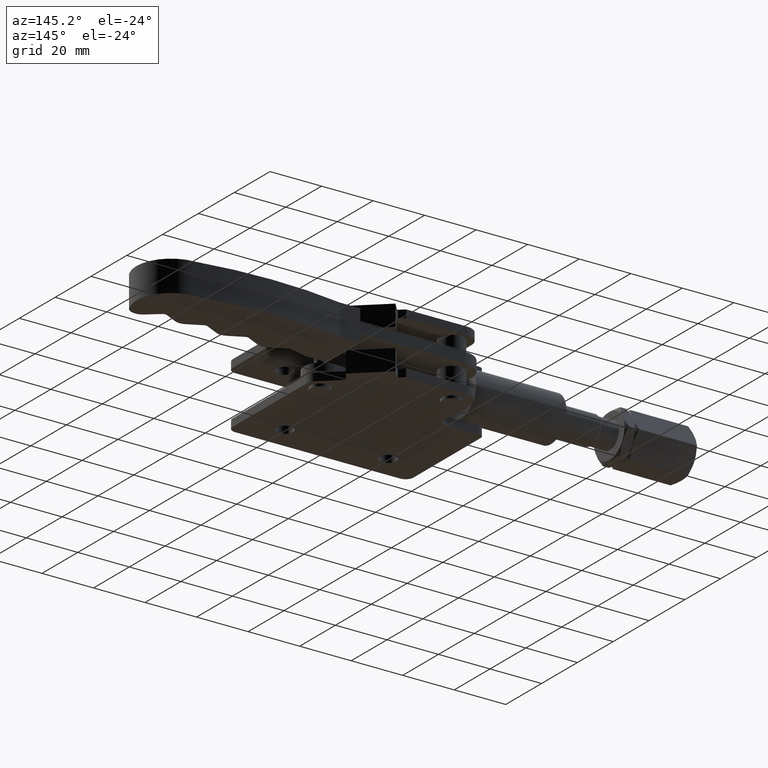
[diagram: clean part render]
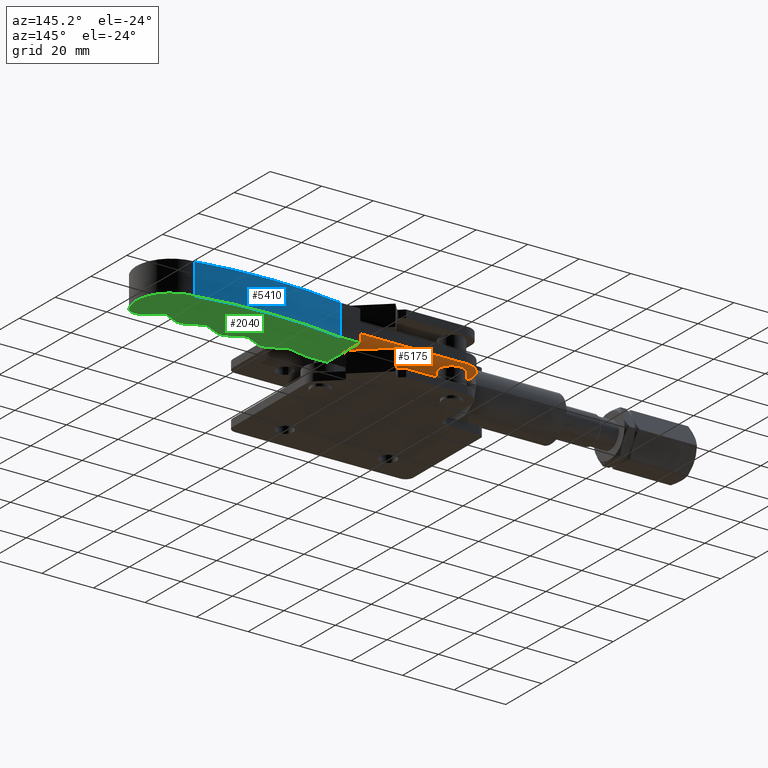
[diagram: same view with three faces highlighted in distinct colors, each labeled with its STEP entity id]
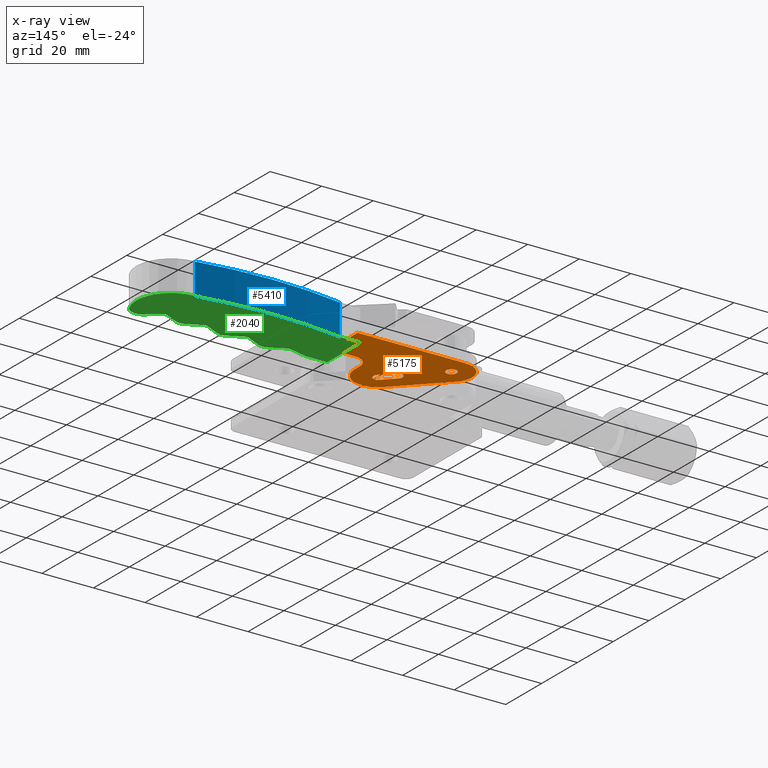
[diagram: x-ray of the same camera — body ghosted, the three highlighted faces saturated]
A machine part, auxiliary view with three faces highlighted in distinct colors.
The next image is the same camera in x-ray (body ghosted, the three faces saturated) — at least one of them is partly hidden behind the body in this view.
Their STEP definitions:

[orange] entity #5175 — the highlighted planar face has unit normal (0, 0, 1).
#105 = FACE_OUTER_BOUND ( 'NONE', #6882, .T. ) ;
#120 = DIRECTION ( 'NONE',  ( 0.0000000000000000000, 0.0000000000000000000, 1.000000000000000000 ) ) ;
#128 = ORIENTED_EDGE ( 'NONE', *, *, #5411, .F. ) ;
#252 = VERTEX_POINT ( 'NONE', #3596 ) ;
#255 = CARTESIAN_POINT ( 'NONE',  ( 16.63999999999999700, 37.80000000000000400, -13.77000000000000500 ) ) ;
#260 = CIRCLE ( 'NONE', #5639, 5.499999999999019500 ) ;
#271 = DIRECTION ( 'NONE',  ( 0.0000000000000000000, 0.0000000000000000000, 1.000000000000000000 ) ) ;
#275 = LINE ( 'NONE', #4482, #3227 ) ;
#327 = LINE ( 'NONE', #2706, #1742 ) ;
#346 = AXIS2_PLACEMENT_3D ( 'NONE', #3996, #120, #2232 ) ;
#491 = ORIENTED_EDGE ( 'NONE', *, *, #5533, .F. ) ;
#628 = VERTEX_POINT ( 'NONE', #735 ) ;
#735 = CARTESIAN_POINT ( 'NONE',  ( 35.49708473947954700, 23.89462406883339800, -13.77000000000000500 ) ) ;
#736 = CARTESIAN_POINT ( 'NONE',  ( 66.63999999999997200, 30.13999999999999000, -13.77000000000000500 ) ) ;
#768 = VECTOR ( 'NONE', #6099, 999.9999999999998900 ) ;
#782 = AXIS2_PLACEMENT_3D ( 'NONE', #1001, #5274, #6490 ) ;
#916 = EDGE_CURVE ( 'NONE', #3163, #4351, #327, .T. ) ;
#1001 = CARTESIAN_POINT ( 'NONE',  ( 42.06757448628071900, 21.80705538169615900, -13.77000000000000500 ) ) ;
#1109 = VECTOR ( 'NONE', #5834, 1000.000000000000000 ) ;
#1158 = CIRCLE ( 'NONE', #782, 9.000000000000257600 ) ;
#1171 = DIRECTION ( 'NONE',  ( 1.000000000000000000, 0.0000000000000000000, 0.0000000000000000000 ) ) ;
#1309 = DIRECTION ( 'NONE',  ( 0.0000000000000000000, 0.0000000000000000000, 1.000000000000000000 ) ) ;
#1326 = ORIENTED_EDGE ( 'NONE', *, *, #6777, .T. ) ;
#1459 = EDGE_CURVE ( 'NONE', #2642, #4711, #2416, .T. ) ;
#1492 = FACE_BOUND ( 'NONE', #6601, .T. ) ;
#1710 = CARTESIAN_POINT ( 'NONE',  ( 35.70361345560031900, 15.44309435101834700, -13.77000000000000500 ) ) ;
#1742 = VECTOR ( 'NONE', #5697, 1000.000000000000100 ) ;
#1764 = CIRCLE ( 'NONE', #2292, 1.999999999999994900 ) ;
#1785 = EDGE_CURVE ( 'NONE', #628, #252, #4349, .T. ) ;
#1796 = CARTESIAN_POINT ( 'NONE',  ( 24.63999999999481700, 45.79999999999999000, -13.77000000000000500 ) ) ;
#1806 = DIRECTION ( 'NONE',  ( 0.7001403784983845100, -0.7140052173451808500, 0.0000000000000000000 ) ) ;
#1867 = CARTESIAN_POINT ( 'NONE',  ( 24.63999999999998300, 37.80000000000000400, -13.77000000000000500 ) ) ;
#1879 = CARTESIAN_POINT ( 'NONE',  ( 19.33304178759185300, 31.81366601902687600, -13.77000000000000500 ) ) ;
#1938 = AXIS2_PLACEMENT_3D ( 'NONE', #4382, #6692, #2212 ) ;
#2085 = VERTEX_POINT ( 'NONE', #5777 ) ;
#2115 = ORIENTED_EDGE ( 'NONE', *, *, #4619, .T. ) ;
#2120 = EDGE_CURVE ( 'NONE', #7814, #2587, #1158, .T. ) ;
#2212 = DIRECTION ( 'NONE',  ( 1.000000000000000000, 0.0000000000000000000, 0.0000000000000000000 ) ) ;
#2232 = DIRECTION ( 'NONE',  ( 1.000000000000000000, 0.0000000000000000000, 0.0000000000000000000 ) ) ;
#2263 = CIRCLE ( 'NONE', #4455, 1.999999999999994900 ) ;
#2292 = AXIS2_PLACEMENT_3D ( 'NONE', #3544, #271, #5903 ) ;
#2347 = DIRECTION ( 'NONE',  ( 1.000000000000000000, 9.577049455932481800E-017, -0.0000000000000000000 ) ) ;
#2355 = VERTEX_POINT ( 'NONE', #255 ) ;
#2416 = CIRCLE ( 'NONE', #346, 2.000000000000001800 ) ;
#2435 = DIRECTION ( 'NONE',  ( 0.0000000000000000000, 0.0000000000000000000, 1.000000000000000000 ) ) ;
#2453 = CARTESIAN_POINT ( 'NONE',  ( 51.06168597189167700, 24.64942046338285300, -13.77000000000000500 ) ) ;
#2461 = CARTESIAN_POINT ( 'NONE',  ( 24.63999999999481700, 45.79999999999999000, -13.77000000000000500 ) ) ;
#2491 = VERTEX_POINT ( 'NONE', #5902 ) ;
#2586 = VERTEX_POINT ( 'NONE', #736 ) ;
#2587 = VERTEX_POINT ( 'NONE', #4617 ) ;
#2605 = VERTEX_POINT ( 'NONE', #4953 ) ;
#2631 = DIRECTION ( 'NONE',  ( -0.002071690857297302800, 0.9999978540461933500, -0.0000000000000000000 ) ) ;
#2642 = VERTEX_POINT ( 'NONE', #3200 ) ;
#2696 = CARTESIAN_POINT ( 'NONE',  ( 42.63796472527037200, 22.32547365267441800, -13.77000000000000500 ) ) ;
#2706 = CARTESIAN_POINT ( 'NONE',  ( 48.30628017460944800, 16.54490888498228400, -13.77000000000000500 ) ) ;
#2846 = EDGE_CURVE ( 'NONE', #4711, #2642, #6194, .T. ) ;
#2887 = ORIENTED_EDGE ( 'NONE', *, *, #1459, .T. ) ;
#2963 = CARTESIAN_POINT ( 'NONE',  ( 41.20995429058001500, 20.92519289567766100, -13.77000000000000500 ) ) ;
#3027 = LINE ( 'NONE', #3054, #1109 ) ;
#3054 = CARTESIAN_POINT ( 'NONE',  ( 66.63999999999997200, 24.64000000000688600, -13.77000000000000500 ) ) ;
#3073 = CARTESIAN_POINT ( 'NONE',  ( 43.20995429058001500, 20.92519289567766100, -13.77000000000000500 ) ) ;
#3133 = EDGE_CURVE ( 'NONE', #4362, #2355, #4919, .T. ) ;
#3163 = VERTEX_POINT ( 'NONE', #2696 ) ;
#3200 = CARTESIAN_POINT ( 'NONE',  ( 26.63999999999998300, 37.80000000000000400, -13.77000000000000500 ) ) ;
#3227 = VECTOR ( 'NONE', #2347, 1000.000000000000000 ) ;
#3228 = CIRCLE ( 'NONE', #1938, 7.999999999999979600 ) ;
#3537 = LINE ( 'NONE', #1879, #768 ) ;
#3544 = CARTESIAN_POINT ( 'NONE',  ( 41.20995429058001500, 20.92519289567766100, -13.77000000000000500 ) ) ;
#3596 = CARTESIAN_POINT ( 'NONE',  ( 39.78194385588965800, 19.52491213868089300, -13.77000000000000500 ) ) ;
#3629 = ORIENTED_EDGE ( 'NONE', *, *, #7435, .F. ) ;
#3686 = EDGE_CURVE ( 'NONE', #2586, #2085, #3027, .T. ) ;
#3790 = DIRECTION ( 'NONE',  ( -1.000000000000000000, -0.0000000000000000000, -0.0000000000000000000 ) ) ;
#3883 = DIRECTION ( 'NONE',  ( 0.0000000000000000000, 0.0000000000000000000, 1.000000000000000000 ) ) ;
#3996 = CARTESIAN_POINT ( 'NONE',  ( 24.63999999999998300, 37.80000000000000400, -13.77000000000000500 ) ) ;
#4017 = VECTOR ( 'NONE', #2631, 1000.000000000000000 ) ;
#4043 = VECTOR ( 'NONE', #3790, 1000.000000000000000 ) ;
#4225 = VECTOR ( 'NONE', #1806, 1000.000000000000100 ) ;
#4230 = ORIENTED_EDGE ( 'NONE', *, *, #6634, .T. ) ;
#4349 = LINE ( 'NONE', #6594, #4225 ) ;
#4351 = VERTEX_POINT ( 'NONE', #5416 ) ;
#4362 = VERTEX_POINT ( 'NONE', #2461 ) ;
#4374 = CARTESIAN_POINT ( 'NONE',  ( 51.06168597189167700, 24.64942046338285300, -13.77000000000000500 ) ) ;
#4382 = CARTESIAN_POINT ( 'NONE',  ( 24.63999999999998300, 37.80000000000000400, -13.77000000000000500 ) ) ;
#4455 = AXIS2_PLACEMENT_3D ( 'NONE', #7656, #1309, #1171 ) ;
#4482 = CARTESIAN_POINT ( 'NONE',  ( 74.67502540862861300, 30.13999999999999000, -13.77000000000000500 ) ) ;
#4523 = ORIENTED_EDGE ( 'NONE', *, *, #4691, .F. ) ;
#4617 = CARTESIAN_POINT ( 'NONE',  ( 51.06757448628098900, 21.80705538169442200, -13.77000000000000500 ) ) ;
#4619 = EDGE_CURVE ( 'NONE', #6875, #3163, #4898, .T. ) ;
#4626 = DIRECTION ( 'NONE',  ( 0.0000000000000000000, 0.0000000000000000000, 1.000000000000000000 ) ) ;
#4691 = EDGE_CURVE ( 'NONE', #2587, #4837, #6028, .T. ) ;
#4711 = VERTEX_POINT ( 'NONE', #7704 ) ;
#4733 = ORIENTED_EDGE ( 'NONE', *, *, #1785, .T. ) ;
#4744 = AXIS2_PLACEMENT_3D ( 'NONE', #5635, #2435, #7849 ) ;
#4754 = DIRECTION ( 'NONE',  ( 1.000000000000000000, 0.0000000000000000000, 0.0000000000000000000 ) ) ;
#4826 = ORIENTED_EDGE ( 'NONE', *, *, #2120, .F. ) ;
#4837 = VERTEX_POINT ( 'NONE', #4374 ) ;
#4898 = CIRCLE ( 'NONE', #7235, 1.999999999999994900 ) ;
#4919 = CIRCLE ( 'NONE', #6386, 7.999999999999979600 ) ;
#4953 = CARTESIAN_POINT ( 'NONE',  ( 19.33304178759185300, 31.81366601902687600, -13.77000000000000500 ) ) ;
#5175 = ADVANCED_FACE ( 'NONE', ( #6191, #1492, #105 ), #7450, .F. ) ;
#5240 = EDGE_CURVE ( 'NONE', #2605, #7814, #3537, .T. ) ;
#5266 = ORIENTED_EDGE ( 'NONE', *, *, #5240, .F. ) ;
#5274 = DIRECTION ( 'NONE',  ( 0.0000000000000000000, 0.0000000000000000000, 1.000000000000000000 ) ) ;
#5296 = DIRECTION ( 'NONE',  ( 0.0000000000000000000, 0.0000000000000000000, 1.000000000000000000 ) ) ;
#5411 = EDGE_CURVE ( 'NONE', #2491, #2586, #275, .T. ) ;
#5416 = CARTESIAN_POINT ( 'NONE',  ( 38.35310560886026800, 26.69518558282693700, -13.77000000000000500 ) ) ;
#5533 = EDGE_CURVE ( 'NONE', #4837, #2491, #260, .T. ) ;
#5635 = CARTESIAN_POINT ( 'NONE',  ( 56.56167790414566800, 24.64000000000688600, -13.77000000000000500 ) ) ;
#5639 = AXIS2_PLACEMENT_3D ( 'NONE', #5674, #6016, #7811 ) ;
#5674 = CARTESIAN_POINT ( 'NONE',  ( 56.56167790414566800, 24.64000000000688600, -13.77000000000000500 ) ) ;
#5697 = DIRECTION ( 'NONE',  ( -0.7001403784983836200, 0.7140052173451816300, 0.0000000000000000000 ) ) ;
#5777 = CARTESIAN_POINT ( 'NONE',  ( 66.63999999999997200, 45.79999999999999000, -13.77000000000000500 ) ) ;
#5789 = DIRECTION ( 'NONE',  ( 1.000000000000000000, 0.0000000000000000000, 0.0000000000000000000 ) ) ;
#5834 = DIRECTION ( 'NONE',  ( -0.0000000000000000000, 1.000000000000000000, 0.0000000000000000000 ) ) ;
#5902 = CARTESIAN_POINT ( 'NONE',  ( 56.56168597189596900, 30.13999999999998600, -13.77000000000000500 ) ) ;
#5903 = DIRECTION ( 'NONE',  ( 1.000000000000000000, 0.0000000000000000000, 0.0000000000000000000 ) ) ;
#6016 = DIRECTION ( 'NONE',  ( -0.0000000000000000000, -0.0000000000000000000, -1.000000000000000000 ) ) ;
#6028 = LINE ( 'NONE', #2453, #4017 ) ;
#6099 = DIRECTION ( 'NONE',  ( 0.7071067811865464600, -0.7071067811865486800, 0.0000000000000000000 ) ) ;
#6191 = FACE_BOUND ( 'NONE', #7273, .T. ) ;
#6194 = CIRCLE ( 'NONE', #6949, 2.000000000000001800 ) ;
#6344 = DIRECTION ( 'NONE',  ( 1.000000000000000000, 0.0000000000000000000, 0.0000000000000000000 ) ) ;
#6386 = AXIS2_PLACEMENT_3D ( 'NONE', #7318, #5296, #4754 ) ;
#6413 = ORIENTED_EDGE ( 'NONE', *, *, #916, .T. ) ;
#6490 = DIRECTION ( 'NONE',  ( 1.000000000000000000, 0.0000000000000000000, 0.0000000000000000000 ) ) ;
#6593 = ORIENTED_EDGE ( 'NONE', *, *, #3133, .F. ) ;
#6594 = CARTESIAN_POINT ( 'NONE',  ( 45.45025930522874800, 13.74434737098875200, -13.77000000000000500 ) ) ;
#6601 = EDGE_LOOP ( 'NONE', ( #7196, #2887 ) ) ;
#6634 = EDGE_CURVE ( 'NONE', #252, #6875, #1764, .T. ) ;
#6692 = DIRECTION ( 'NONE',  ( 0.0000000000000000000, 0.0000000000000000000, 1.000000000000000000 ) ) ;
#6722 = ORIENTED_EDGE ( 'NONE', *, *, #3686, .F. ) ;
#6777 = EDGE_CURVE ( 'NONE', #4351, #628, #2263, .T. ) ;
#6875 = VERTEX_POINT ( 'NONE', #3073 ) ;
#6882 = EDGE_LOOP ( 'NONE', ( #6722, #128, #491, #4523, #4826, #5266, #7836, #6593, #3629 ) ) ;
#6949 = AXIS2_PLACEMENT_3D ( 'NONE', #1867, #3883, #6344 ) ;
#7196 = ORIENTED_EDGE ( 'NONE', *, *, #2846, .T. ) ;
#7235 = AXIS2_PLACEMENT_3D ( 'NONE', #2963, #4626, #5789 ) ;
#7273 = EDGE_LOOP ( 'NONE', ( #4733, #4230, #2115, #6413, #1326 ) ) ;
#7282 = LINE ( 'NONE', #1796, #4043 ) ;
#7318 = CARTESIAN_POINT ( 'NONE',  ( 24.63999999999998300, 37.80000000000000400, -13.77000000000000500 ) ) ;
#7435 = EDGE_CURVE ( 'NONE', #2085, #4362, #7282, .T. ) ;
#7450 = PLANE ( 'NONE',  #4744 ) ;
#7545 = EDGE_CURVE ( 'NONE', #2355, #2605, #3228, .T. ) ;
#7656 = CARTESIAN_POINT ( 'NONE',  ( 36.92509517416990400, 25.29490482583016900, -13.77000000000000500 ) ) ;
#7704 = CARTESIAN_POINT ( 'NONE',  ( 22.63999999999997900, 37.80000000000000400, -13.77000000000000500 ) ) ;
#7811 = DIRECTION ( 'NONE',  ( 1.000000000000000000, 0.0000000000000000000, 0.0000000000000000000 ) ) ;
#7814 = VERTEX_POINT ( 'NONE', #1710 ) ;
#7836 = ORIENTED_EDGE ( 'NONE', *, *, #7545, .F. ) ;
#7849 = DIRECTION ( 'NONE',  ( 1.000000000000000000, 0.0000000000000000000, -0.0000000000000000000 ) ) ;

[blue] entity #5410 — the highlighted cylindrical surface (partial cylindrical patch) has radius 161.5 mm, axis along (-0, -0, -1).
#82 = VECTOR ( 'NONE', #980, 1000.000000000000000 ) ;
#551 = DIRECTION ( 'NONE',  ( 1.000000000000000000, 0.0000000000000000000, 0.0000000000000000000 ) ) ;
#635 = CARTESIAN_POINT ( 'NONE',  ( 130.8058311041600900, 47.29931510057464500, -17.77000000000000300 ) ) ;
#980 = DIRECTION ( 'NONE',  ( -0.0000000000000000000, -0.0000000000000000000, -1.000000000000000000 ) ) ;
#1095 = LINE ( 'NONE', #3642, #3161 ) ;
#1585 = AXIS2_PLACEMENT_3D ( 'NONE', #3805, #6986, #551 ) ;
#1618 = CARTESIAN_POINT ( 'NONE',  ( 130.8058311041600900, 47.29931510057464500, -5.770000000000004000 ) ) ;
#1793 = EDGE_CURVE ( 'NONE', #3017, #3004, #6496, .T. ) ;
#2457 = DIRECTION ( 'NONE',  ( -1.000000000000000000, 0.0000000000000000000, 0.0000000000000000000 ) ) ;
#2497 = ORIENTED_EDGE ( 'NONE', *, *, #1793, .T. ) ;
#2695 = EDGE_CURVE ( 'NONE', #3400, #3017, #1095, .T. ) ;
#2761 = ORIENTED_EDGE ( 'NONE', *, *, #3774, .F. ) ;
#3004 = VERTEX_POINT ( 'NONE', #5115 ) ;
#3017 = VERTEX_POINT ( 'NONE', #635 ) ;
#3028 = DIRECTION ( 'NONE',  ( 0.0000000000000000000, 0.0000000000000000000, 1.000000000000000000 ) ) ;
#3161 = VECTOR ( 'NONE', #4014, 1000.000000000000000 ) ;
#3400 = VERTEX_POINT ( 'NONE', #1618 ) ;
#3500 = FACE_OUTER_BOUND ( 'NONE', #7673, .T. ) ;
#3502 = ORIENTED_EDGE ( 'NONE', *, *, #3504, .F. ) ;
#3504 = EDGE_CURVE ( 'NONE', #3400, #4165, #6939, .T. ) ;
#3642 = CARTESIAN_POINT ( 'NONE',  ( 130.8058311041600900, 47.29931510057464500, -5.770000000000004000 ) ) ;
#3763 = LINE ( 'NONE', #5427, #82 ) ;
#3774 = EDGE_CURVE ( 'NONE', #4165, #3004, #3763, .T. ) ;
#3805 = CARTESIAN_POINT ( 'NONE',  ( 102.6699999999937100, -111.7309493401217800, -5.770000000000004000 ) ) ;
#3969 = CARTESIAN_POINT ( 'NONE',  ( 74.53804038144534200, 47.29999999999999000, -5.770000000000004000 ) ) ;
#4014 = DIRECTION ( 'NONE',  ( -0.0000000000000000000, -0.0000000000000000000, -1.000000000000000000 ) ) ;
#4165 = VERTEX_POINT ( 'NONE', #3969 ) ;
#4176 = DIRECTION ( 'NONE',  ( 1.000000000000000000, 0.0000000000000000000, 0.0000000000000000000 ) ) ;
#5115 = CARTESIAN_POINT ( 'NONE',  ( 74.53804038144534200, 47.29999999999999000, -17.77000000000000300 ) ) ;
#5410 = ADVANCED_FACE ( 'NONE', ( #3500 ), #5562, .T. ) ;
#5427 = CARTESIAN_POINT ( 'NONE',  ( 74.53804038144534200, 47.29999999999999000, -5.770000000000004000 ) ) ;
#5562 = CYLINDRICAL_SURFACE ( 'NONE', #7024, 161.5000000000000300 ) ;
#6010 = CARTESIAN_POINT ( 'NONE',  ( 102.6699999999937100, -111.7309493401217800, -17.77000000000000300 ) ) ;
#6273 = CARTESIAN_POINT ( 'NONE',  ( 102.6699999999937100, -111.7309493401217800, -5.770000000000004000 ) ) ;
#6496 = CIRCLE ( 'NONE', #7843, 161.5000000000000300 ) ;
#6741 = ORIENTED_EDGE ( 'NONE', *, *, #2695, .T. ) ;
#6939 = CIRCLE ( 'NONE', #1585, 161.5000000000000300 ) ;
#6986 = DIRECTION ( 'NONE',  ( 0.0000000000000000000, 0.0000000000000000000, 1.000000000000000000 ) ) ;
#7024 = AXIS2_PLACEMENT_3D ( 'NONE', #6273, #7408, #2457 ) ;
#7408 = DIRECTION ( 'NONE',  ( -0.0000000000000000000, -0.0000000000000000000, -1.000000000000000000 ) ) ;
#7673 = EDGE_LOOP ( 'NONE', ( #2497, #2761, #3502, #6741 ) ) ;
#7843 = AXIS2_PLACEMENT_3D ( 'NONE', #6010, #3028, #4176 ) ;

[green] entity #2040 — the highlighted planar face has unit normal (0, 0, 1).
#11 = CARTESIAN_POINT ( 'NONE',  ( 92.68748658837805000, 27.46917960674771600, -17.77000000000000300 ) ) ;
#55 = LINE ( 'NONE', #4320, #701 ) ;
#61 = EDGE_LOOP ( 'NONE', ( #1667, #6537, #1822, #3367, #6146, #170, #6014, #4206, #5437, #5213, #495, #7397, #6819, #4157, #1136, #1739, #1060, #3464, #727, #2899, #7007 ) ) ;
#170 = ORIENTED_EDGE ( 'NONE', *, *, #4794, .F. ) ;
#193 = EDGE_CURVE ( 'NONE', #5414, #4719, #7507, .T. ) ;
#231 = EDGE_CURVE ( 'NONE', #7805, #4280, #1582, .T. ) ;
#287 = LINE ( 'NONE', #2578, #3439 ) ;
#351 = VECTOR ( 'NONE', #5617, 1000.000000000000200 ) ;
#361 = CARTESIAN_POINT ( 'NONE',  ( 142.6491224636866100, 27.57499845449425600, -17.77000000000000300 ) ) ;
#473 = CARTESIAN_POINT ( 'NONE',  ( 66.63999999999997200, 47.29999999999999000, -17.77000000000000300 ) ) ;
#488 = CARTESIAN_POINT ( 'NONE',  ( 108.6874865883790200, 27.46917960674719700, -17.77000000000000300 ) ) ;
#495 = ORIENTED_EDGE ( 'NONE', *, *, #3207, .F. ) ;
#600 = VERTEX_POINT ( 'NONE', #1310 ) ;
#607 = EDGE_CURVE ( 'NONE', #4280, #600, #5012, .T. ) ;
#635 = CARTESIAN_POINT ( 'NONE',  ( 130.8058311041600900, 47.29931510057464500, -17.77000000000000300 ) ) ;
#656 = CARTESIAN_POINT ( 'NONE',  ( 115.3458458018796300, 30.12753882024736600, -17.77000000000000300 ) ) ;
#701 = VECTOR ( 'NONE', #4463, 999.9999999999998900 ) ;
#727 = ORIENTED_EDGE ( 'NONE', *, *, #1210, .F. ) ;
#866 = VERTEX_POINT ( 'NONE', #473 ) ;
#891 = DIRECTION ( 'NONE',  ( 1.000000000000000000, 0.0000000000000000000, 0.0000000000000000000 ) ) ;
#932 = AXIS2_PLACEMENT_3D ( 'NONE', #2068, #3925, #6888 ) ;
#941 = CARTESIAN_POINT ( 'NONE',  ( 108.6874865883790200, 27.46917960674719700, -17.77000000000000300 ) ) ;
#961 = VERTEX_POINT ( 'NONE', #7582 ) ;
#984 = VERTEX_POINT ( 'NONE', #7105 ) ;
#997 = CARTESIAN_POINT ( 'NONE',  ( 138.6560816424576800, 29.64999845449419500, -17.77000000000000300 ) ) ;
#1010 = DIRECTION ( 'NONE',  ( 1.000000000000000000, 0.0000000000000000000, 0.0000000000000000000 ) ) ;
#1050 = CARTESIAN_POINT ( 'NONE',  ( 130.6699999999999900, 33.79999845449419400, -17.77000000000000300 ) ) ;
#1060 = ORIENTED_EDGE ( 'NONE', *, *, #5373, .F. ) ;
#1136 = ORIENTED_EDGE ( 'NONE', *, *, #193, .F. ) ;
#1210 = EDGE_CURVE ( 'NONE', #7376, #2404, #6595, .T. ) ;
#1212 = AXIS2_PLACEMENT_3D ( 'NONE', #2569, #7045, #4487 ) ;
#1301 = CARTESIAN_POINT ( 'NONE',  ( 92.68748658837805000, 27.46917960674771600, -17.77000000000000300 ) ) ;
#1310 = CARTESIAN_POINT ( 'NONE',  ( 120.6625642288801600, 27.46917960674714400, -17.77000000000000300 ) ) ;
#1343 = DIRECTION ( 'NONE',  ( 1.000000000000000000, 0.0000000000000000000, 0.0000000000000000000 ) ) ;
#1416 = LINE ( 'NONE', #3354, #3057 ) ;
#1514 = DIRECTION ( 'NONE',  ( -1.000000000000000000, 0.0000000000000000000, 0.0000000000000000000 ) ) ;
#1541 = DIRECTION ( 'NONE',  ( 1.000000000000000000, 2.110450363122312900E-016, 0.0000000000000000000 ) ) ;
#1582 = CIRCLE ( 'NONE', #1909, 1.499999999999973600 ) ;
#1667 = ORIENTED_EDGE ( 'NONE', *, *, #7233, .F. ) ;
#1688 = CIRCLE ( 'NONE', #4877, 4.499999913602337600 ) ;
#1721 = EDGE_CURVE ( 'NONE', #4229, #5414, #55, .T. ) ;
#1739 = ORIENTED_EDGE ( 'NONE', *, *, #1721, .F. ) ;
#1784 = CARTESIAN_POINT ( 'NONE',  ( 66.63999999999997200, 28.63999999999999000, -17.77000000000000300 ) ) ;
#1786 = LINE ( 'NONE', #488, #2138 ) ;
#1793 = EDGE_CURVE ( 'NONE', #3017, #3004, #6496, .T. ) ;
#1822 = ORIENTED_EDGE ( 'NONE', *, *, #7581, .F. ) ;
#1824 = DIRECTION ( 'NONE',  ( -0.0000000000000000000, -0.0000000000000000000, -1.000000000000000000 ) ) ;
#1894 = CARTESIAN_POINT ( 'NONE',  ( 74.85968384705510900, 28.63999999999999300, -17.77000000000000300 ) ) ;
#1899 = CARTESIAN_POINT ( 'NONE',  ( 99.34584580187953400, 30.12753882024799200, -17.77000000000000300 ) ) ;
#1909 = AXIS2_PLACEMENT_3D ( 'NONE', #5551, #1824, #5439 ) ;
#1979 = DIRECTION ( 'NONE',  ( 0.8944270442442886500, 0.4472138890110920500, 0.0000000000000000000 ) ) ;
#2040 = ADVANCED_FACE ( 'NONE', ( #7635 ), #2143, .F. ) ;
#2068 = CARTESIAN_POINT ( 'NONE',  ( 122.6750254086298900, 31.49410196624680900, -17.77000000000000300 ) ) ;
#2138 = VECTOR ( 'NONE', #2655, 1000.000000000000100 ) ;
#2143 = PLANE ( 'NONE',  #6137 ) ;
#2404 = VERTEX_POINT ( 'NONE', #11 ) ;
#2405 = VERTEX_POINT ( 'NONE', #1894 ) ;
#2470 = DIRECTION ( 'NONE',  ( 0.7836962080856436600, -0.6211443096673939800, 0.0000000000000000000 ) ) ;
#2569 = CARTESIAN_POINT ( 'NONE',  ( 106.6750254086301100, 31.49410196624727500, -17.77000000000000300 ) ) ;
#2578 = CARTESIAN_POINT ( 'NONE',  ( 131.2436818901617000, 29.78292108832277000, -17.77000000000000300 ) ) ;
#2655 = DIRECTION ( 'NONE',  ( 0.8944271909999175200, 0.4472135954999546500, 0.0000000000000000000 ) ) ;
#2782 = CARTESIAN_POINT ( 'NONE',  ( 82.99681547249699100, 30.30205398494103300, -17.77000000000000300 ) ) ;
#2899 = ORIENTED_EDGE ( 'NONE', *, *, #3860, .F. ) ;
#3004 = VERTEX_POINT ( 'NONE', #5115 ) ;
#3017 = VERTEX_POINT ( 'NONE', #635 ) ;
#3028 = DIRECTION ( 'NONE',  ( 0.0000000000000000000, 0.0000000000000000000, 1.000000000000000000 ) ) ;
#3057 = VECTOR ( 'NONE', #1979, 1000.000000000000000 ) ;
#3058 = VERTEX_POINT ( 'NONE', #5506 ) ;
#3102 = LINE ( 'NONE', #6769, #5480 ) ;
#3207 = EDGE_CURVE ( 'NONE', #600, #4615, #3271, .T. ) ;
#3271 = CIRCLE ( 'NONE', #932, 4.500000000000017800 ) ;
#3330 = EDGE_CURVE ( 'NONE', #2404, #984, #7237, .T. ) ;
#3354 = CARTESIAN_POINT ( 'NONE',  ( 124.6874865883794000, 27.46917960674702600, -17.77000000000000300 ) ) ;
#3365 = DIRECTION ( 'NONE',  ( 1.000000000000000000, 0.0000000000000000000, 0.0000000000000000000 ) ) ;
#3367 = ORIENTED_EDGE ( 'NONE', *, *, #6873, .F. ) ;
#3409 = DIRECTION ( 'NONE',  ( 0.0000000000000000000, 0.0000000000000000000, 1.000000000000000000 ) ) ;
#3439 = VECTOR ( 'NONE', #2470, 1000.000000000000100 ) ;
#3464 = ORIENTED_EDGE ( 'NONE', *, *, #3330, .F. ) ;
#3484 = CIRCLE ( 'NONE', #6674, 13.50000000000003900 ) ;
#3547 = VERTEX_POINT ( 'NONE', #5951 ) ;
#3607 = DIRECTION ( 'NONE',  ( -0.0000000000000000000, -0.0000000000000000000, -1.000000000000000000 ) ) ;
#3664 = VERTEX_POINT ( 'NONE', #361 ) ;
#3702 = DIRECTION ( 'NONE',  ( -0.0000000000000000000, -0.0000000000000000000, -1.000000000000000000 ) ) ;
#3715 = DIRECTION ( 'NONE',  ( 0.0000000000000000000, 0.0000000000000000000, 1.000000000000000000 ) ) ;
#3760 = EDGE_CURVE ( 'NONE', #4719, #7805, #1786, .T. ) ;
#3807 = VECTOR ( 'NONE', #4864, 1000.000000000000200 ) ;
#3811 = EDGE_CURVE ( 'NONE', #5541, #3664, #1688, .T. ) ;
#3860 = EDGE_CURVE ( 'NONE', #7002, #7376, #6156, .T. ) ;
#3925 = DIRECTION ( 'NONE',  ( 0.0000000000000000000, 0.0000000000000000000, 1.000000000000000000 ) ) ;
#4006 = CARTESIAN_POINT ( 'NONE',  ( 82.32599507924670900, 28.96041319844130900, -17.77000000000000300 ) ) ;
#4049 = EDGE_CURVE ( 'NONE', #961, #7002, #7327, .T. ) ;
#4126 = DIRECTION ( 'NONE',  ( 0.0000000000000000000, -1.000000000000000000, 0.0000000000000000000 ) ) ;
#4157 = ORIENTED_EDGE ( 'NONE', *, *, #3760, .F. ) ;
#4176 = DIRECTION ( 'NONE',  ( 1.000000000000000000, 0.0000000000000000000, 0.0000000000000000000 ) ) ;
#4206 = ORIENTED_EDGE ( 'NONE', *, *, #6204, .F. ) ;
#4229 = VERTEX_POINT ( 'NONE', #1899 ) ;
#4280 = VERTEX_POINT ( 'NONE', #656 ) ;
#4320 = CARTESIAN_POINT ( 'NONE',  ( 99.34584580187953400, 30.12753882024799200, -17.77000000000000300 ) ) ;
#4348 = VECTOR ( 'NONE', #7130, 1000.000000000000000 ) ;
#4352 = DIRECTION ( 'NONE',  ( 0.0000000000000000000, 0.0000000000000000000, 1.000000000000000000 ) ) ;
#4403 = EDGE_CURVE ( 'NONE', #3058, #3547, #4458, .T. ) ;
#4413 = DIRECTION ( 'NONE',  ( 0.8944271909999110800, -0.4472135954999673100, 0.0000000000000000000 ) ) ;
#4458 = CIRCLE ( 'NONE', #4529, 1.500001850219395700 ) ;
#4463 = DIRECTION ( 'NONE',  ( 0.8944271909999180800, -0.4472135954999533800, 0.0000000000000000000 ) ) ;
#4487 = DIRECTION ( 'NONE',  ( 1.000000000000000000, 0.0000000000000000000, 0.0000000000000000000 ) ) ;
#4528 = EDGE_CURVE ( 'NONE', #4615, #3058, #1416, .T. ) ;
#4529 = AXIS2_PLACEMENT_3D ( 'NONE', #7211, #3607, #4835 ) ;
#4576 = AXIS2_PLACEMENT_3D ( 'NONE', #5706, #4978, #3365 ) ;
#4615 = VERTEX_POINT ( 'NONE', #5612 ) ;
#4629 = VECTOR ( 'NONE', #4413, 1000.000000000000200 ) ;
#4719 = VERTEX_POINT ( 'NONE', #941 ) ;
#4794 = EDGE_CURVE ( 'NONE', #3664, #3017, #3484, .T. ) ;
#4835 = DIRECTION ( 'NONE',  ( 1.000000000000000000, 0.0000000000000000000, 0.0000000000000000000 ) ) ;
#4864 = DIRECTION ( 'NONE',  ( 0.9701425001453297700, 0.2425356250363413200, 0.0000000000000000000 ) ) ;
#4875 = CARTESIAN_POINT ( 'NONE',  ( 74.85968384705510900, 28.63999999999999300, -17.77000000000000300 ) ) ;
#4877 = AXIS2_PLACEMENT_3D ( 'NONE', #997, #3715, #1010 ) ;
#4978 = DIRECTION ( 'NONE',  ( -0.0000000000000000000, -0.0000000000000000000, -1.000000000000000000 ) ) ;
#5012 = LINE ( 'NONE', #5031, #4348 ) ;
#5031 = CARTESIAN_POINT ( 'NONE',  ( 115.3458458018796300, 30.12753882024736600, -17.77000000000000300 ) ) ;
#5115 = CARTESIAN_POINT ( 'NONE',  ( 74.53804038144534200, 47.29999999999999000, -17.77000000000000300 ) ) ;
#5117 = CARTESIAN_POINT ( 'NONE',  ( 104.6625642288803700, 27.46917960674761300, -17.77000000000000300 ) ) ;
#5162 = LINE ( 'NONE', #6786, #5939 ) ;
#5213 = ORIENTED_EDGE ( 'NONE', *, *, #4528, .F. ) ;
#5323 = LINE ( 'NONE', #4875, #3807 ) ;
#5343 = DIRECTION ( 'NONE',  ( 0.0000000000000000000, 0.0000000000000000000, 1.000000000000000000 ) ) ;
#5373 = EDGE_CURVE ( 'NONE', #984, #4229, #6764, .T. ) ;
#5414 = VERTEX_POINT ( 'NONE', #5117 ) ;
#5428 = CARTESIAN_POINT ( 'NONE',  ( 82.99681547249699100, 30.30205398494103300, -17.77000000000000300 ) ) ;
#5437 = ORIENTED_EDGE ( 'NONE', *, *, #4403, .F. ) ;
#5439 = DIRECTION ( 'NONE',  ( 1.000000000000000000, 0.0000000000000000000, 0.0000000000000000000 ) ) ;
#5480 = VECTOR ( 'NONE', #1514, 1000.000000000000000 ) ;
#5506 = CARTESIAN_POINT ( 'NONE',  ( 129.6390417457989500, 29.94495823852320600, -17.77000000000000300 ) ) ;
#5522 = CARTESIAN_POINT ( 'NONE',  ( 66.63999999999997200, 28.63999999999999000, -17.77000000000000300 ) ) ;
#5541 = VERTEX_POINT ( 'NONE', #7236 ) ;
#5551 = CARTESIAN_POINT ( 'NONE',  ( 114.6750254086295200, 28.78589803374760700, -17.77000000000000300 ) ) ;
#5612 = CARTESIAN_POINT ( 'NONE',  ( 124.6874865883794000, 27.46917960674702600, -17.77000000000000300 ) ) ;
#5617 = DIRECTION ( 'NONE',  ( 0.8944271909999169700, 0.4472135954999558200, 0.0000000000000000000 ) ) ;
#5706 = CARTESIAN_POINT ( 'NONE',  ( 98.67502540862908200, 28.78589803374839600, -17.77000000000000300 ) ) ;
#5710 = CARTESIAN_POINT ( 'NONE',  ( 114.0042050153796400, 30.12753882024748700, -17.77000000000000300 ) ) ;
#5825 = DIRECTION ( 'NONE',  ( 1.000000000000000000, 0.0000000000000000000, -0.0000000000000000000 ) ) ;
#5874 = EDGE_CURVE ( 'NONE', #5952, #2405, #6186, .T. ) ;
#5906 = CARTESIAN_POINT ( 'NONE',  ( 90.67502540863077300, 31.49410196624860700, -17.77000000000000300 ) ) ;
#5939 = VECTOR ( 'NONE', #4126, 1000.000000000000000 ) ;
#5951 = CARTESIAN_POINT ( 'NONE',  ( 131.2436818901617000, 29.78292108832277000, -17.77000000000000300 ) ) ;
#5952 = VERTEX_POINT ( 'NONE', #5522 ) ;
#6010 = CARTESIAN_POINT ( 'NONE',  ( 102.6699999999937100, -111.7309493401217800, -17.77000000000000300 ) ) ;
#6014 = ORIENTED_EDGE ( 'NONE', *, *, #3811, .F. ) ;
#6137 = AXIS2_PLACEMENT_3D ( 'NONE', #4006, #3409, #5825 ) ;
#6146 = ORIENTED_EDGE ( 'NONE', *, *, #1793, .F. ) ;
#6156 = LINE ( 'NONE', #2782, #4629 ) ;
#6186 = LINE ( 'NONE', #1784, #7740 ) ;
#6204 = EDGE_CURVE ( 'NONE', #3547, #5541, #287, .T. ) ;
#6496 = CIRCLE ( 'NONE', #7843, 161.5000000000000300 ) ;
#6537 = ORIENTED_EDGE ( 'NONE', *, *, #5874, .F. ) ;
#6595 = CIRCLE ( 'NONE', #7440, 4.500000000000003600 ) ;
#6674 = AXIS2_PLACEMENT_3D ( 'NONE', #1050, #5343, #7401 ) ;
#6764 = CIRCLE ( 'NONE', #4576, 1.499999999999987600 ) ;
#6769 = CARTESIAN_POINT ( 'NONE',  ( 74.53804038144534200, 47.29999999999999000, -17.77000000000000300 ) ) ;
#6786 = CARTESIAN_POINT ( 'NONE',  ( 66.63999999999997200, 47.29999999999999000, -17.77000000000000300 ) ) ;
#6819 = ORIENTED_EDGE ( 'NONE', *, *, #231, .F. ) ;
#6873 = EDGE_CURVE ( 'NONE', #3004, #866, #3102, .T. ) ;
#6888 = DIRECTION ( 'NONE',  ( 1.000000000000000000, 0.0000000000000000000, 0.0000000000000000000 ) ) ;
#7002 = VERTEX_POINT ( 'NONE', #5428 ) ;
#7007 = ORIENTED_EDGE ( 'NONE', *, *, #4049, .F. ) ;
#7045 = DIRECTION ( 'NONE',  ( 0.0000000000000000000, 0.0000000000000000000, 1.000000000000000000 ) ) ;
#7048 = CARTESIAN_POINT ( 'NONE',  ( 88.66256422888102400, 27.46917960674894800, -17.77000000000000300 ) ) ;
#7105 = CARTESIAN_POINT ( 'NONE',  ( 98.00420501537922700, 30.12753882024828700, -17.77000000000000300 ) ) ;
#7130 = DIRECTION ( 'NONE',  ( 0.8944271909999181900, -0.4472135954999534300, 0.0000000000000000000 ) ) ;
#7211 = CARTESIAN_POINT ( 'NONE',  ( 130.3142887573788200, 28.60553783252136700, -17.77000000000000300 ) ) ;
#7233 = EDGE_CURVE ( 'NONE', #2405, #961, #5323, .T. ) ;
#7236 = CARTESIAN_POINT ( 'NONE',  ( 135.8631184492950300, 26.12163398578356400, -17.77000000000000300 ) ) ;
#7237 = LINE ( 'NONE', #1301, #351 ) ;
#7327 = CIRCLE ( 'NONE', #7809, 1.500000000000029100 ) ;
#7376 = VERTEX_POINT ( 'NONE', #7048 ) ;
#7395 = CARTESIAN_POINT ( 'NONE',  ( 82.32599507924670900, 28.96041319844130900, -17.77000000000000300 ) ) ;
#7397 = ORIENTED_EDGE ( 'NONE', *, *, #607, .F. ) ;
#7401 = DIRECTION ( 'NONE',  ( 1.000000000000000000, 0.0000000000000000000, 0.0000000000000000000 ) ) ;
#7440 = AXIS2_PLACEMENT_3D ( 'NONE', #5906, #4352, #1343 ) ;
#7507 = CIRCLE ( 'NONE', #1212, 4.500000000000003600 ) ;
#7581 = EDGE_CURVE ( 'NONE', #866, #5952, #5162, .T. ) ;
#7582 = CARTESIAN_POINT ( 'NONE',  ( 81.96219164169221500, 30.41562694865934100, -17.77000000000000300 ) ) ;
#7635 = FACE_OUTER_BOUND ( 'NONE', #61, .T. ) ;
#7740 = VECTOR ( 'NONE', #1541, 1000.000000000000000 ) ;
#7805 = VERTEX_POINT ( 'NONE', #5710 ) ;
#7809 = AXIS2_PLACEMENT_3D ( 'NONE', #7395, #3702, #891 ) ;
#7843 = AXIS2_PLACEMENT_3D ( 'NONE', #6010, #3028, #4176 ) ;